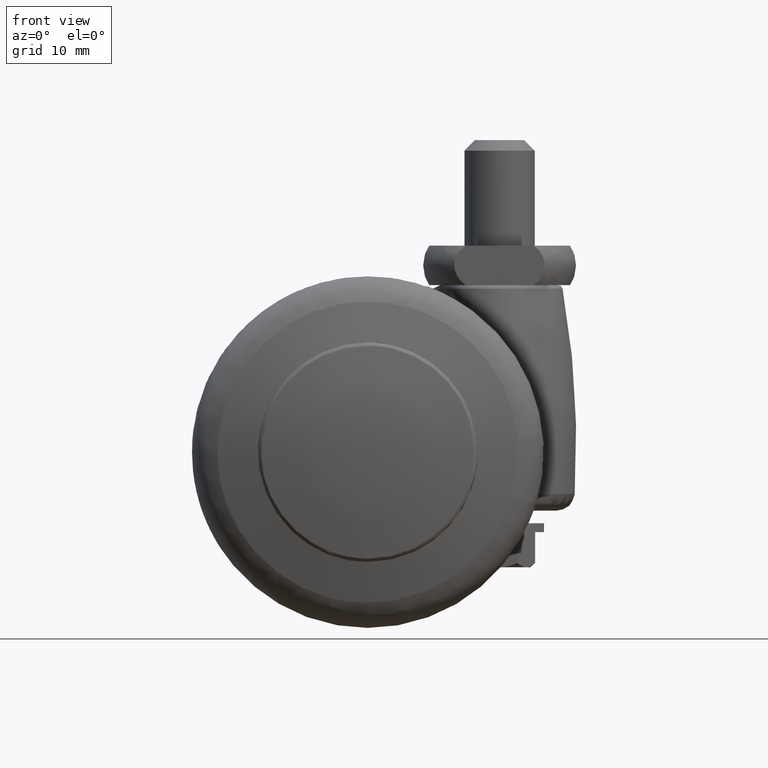
[diagram: clean part render]
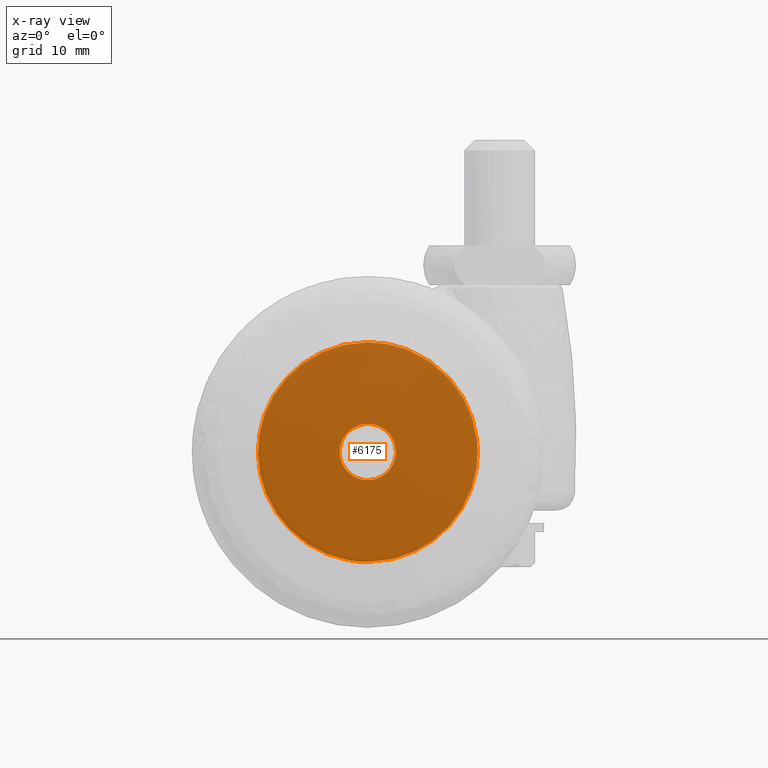
[diagram: x-ray — body ghosted, one internal face saturated and labeled with its STEP entity id]
A machine part, front view, then the same camera in x-ray: the body is ghosted and one INTERNAL B-rep face — a face not visible from any outside direction — is saturated and labeled: STEP entity #6175.
In plain terms, the highlighted face is a freeform B-spline surface patch.
Its self-contained STEP definition (entity closure, byte-faithful):
#3977=CARTESIAN_POINT('',(-3.175460595861829,18.0,-0.397235715630929));
#3978=VERTEX_POINT('',#3977);
#3979=CARTESIAN_POINT('',(0.0,18.0,-3.200210338344024));
#3980=VERTEX_POINT('',#3979);
#3981=CARTESIAN_POINT('',(-3.175460595861828,18.000000000000004,-0.397235715630929));
#3982=CARTESIAN_POINT('',(-2.824821185668508,18.000000000000007,-3.200210338344024));
#3983=CARTESIAN_POINT('',(0.0,18.0,-3.200210338344024));
#3991=(BOUNDED_CURVE()B_SPLINE_CURVE(2,(#3981,#3982,#3983),.UNSPECIFIED.,.F.,.U.)B_SPLINE_CURVE_WITH_KNOTS((3,3),(0.771473928981012,1.0),.UNSPECIFIED.)CURVE()GEOMETRIC_REPRESENTATION_ITEM()RATIONAL_B_SPLINE_CURVE((0.954005430254709,0.732265053905828,1.0))REPRESENTATION_ITEM(''));
#3992=EDGE_CURVE('',#3978,#3980,#3991,.T.);
#3994=CARTESIAN_POINT('',(3.200088484138911,18.0,0.027926749282832));
#3995=VERTEX_POINT('',#3994);
#3996=CARTESIAN_POINT('',(0.0,18.0,-3.200210338344024));
#3997=CARTESIAN_POINT('',(3.200210338344026,18.000000000000007,-3.200210338344024));
#3998=CARTESIAN_POINT('',(3.200210338344026,18.0,1.673897E-015));
#3999=CARTESIAN_POINT('',(3.200210338344026,17.999999999999996,0.013963640569249));
#4000=CARTESIAN_POINT('',(3.200088484138910,18.000000000000004,0.027926749282832));
#4008=(BOUNDED_CURVE()B_SPLINE_CURVE(2,(#3996,#3997,#3998,#3999,#4000),.UNSPECIFIED.,.F.,.U.)B_SPLINE_CURVE_WITH_KNOTS((3,2,3),(0.0,0.250000000000000,0.251539894352932),.UNSPECIFIED.)CURVE()GEOMETRIC_REPRESENTATION_ITEM()RATIONAL_B_SPLINE_CURVE((1.0,0.707106781186548,1.0,0.998195901545348,0.996414028058876))REPRESENTATION_ITEM(''));
#4009=EDGE_CURVE('',#3980,#3995,#4008,.T.);
#4080=CARTESIAN_POINT('',(0.0,18.0,3.200210338344027));
#4081=VERTEX_POINT('',#4080);
#4082=CARTESIAN_POINT('',(0.0,18.0,3.200210338344027));
#4083=CARTESIAN_POINT('',(-3.200210338344026,18.000000000000007,3.200210338344028));
#4084=CARTESIAN_POINT('',(-3.200210338344026,18.0,1.673897E-015));
#4085=CARTESIAN_POINT('',(-3.200210338344026,17.999999999999993,-0.199388873320670));
#4086=CARTESIAN_POINT('',(-3.175460595861829,18.000000000000004,-0.397235715630929));
#4094=(BOUNDED_CURVE()B_SPLINE_CURVE(2,(#4082,#4083,#4084,#4085,#4086),.UNSPECIFIED.,.F.,.U.)B_SPLINE_CURVE_WITH_KNOTS((3,2,3),(0.500000000000000,0.750000000000000,0.771473928981012),.UNSPECIFIED.)CURVE()GEOMETRIC_REPRESENTATION_ITEM()RATIONAL_B_SPLINE_CURVE((1.0,0.707106781186548,1.0,0.974841727280720,0.954005430254709))REPRESENTATION_ITEM(''));
#4095=EDGE_CURVE('',#4081,#3978,#4094,.T.);
#4129=CARTESIAN_POINT('',(3.200088484138910,18.0,0.027926749282832));
#4130=CARTESIAN_POINT('',(3.172404384339173,18.000000000000004,3.200210338344029));
#4131=CARTESIAN_POINT('',(0.0,18.0,3.200210338344027));
#4139=(BOUNDED_CURVE()B_SPLINE_CURVE(2,(#4129,#4130,#4131),.UNSPECIFIED.,.F.,.U.)B_SPLINE_CURVE_WITH_KNOTS((3,3),(0.251539894352932,0.500000000000000),.UNSPECIFIED.)CURVE()GEOMETRIC_REPRESENTATION_ITEM()RATIONAL_B_SPLINE_CURVE((0.996414028058876,0.708910879641199,1.0))REPRESENTATION_ITEM(''));
#4140=EDGE_CURVE('',#3995,#4081,#4139,.T.);
#4252=CARTESIAN_POINT('',(12.419649540628070,18.0,1.415028369975612));
#4253=VERTEX_POINT('',#4252);
#4259=CARTESIAN_POINT('',(0.0,18.0,-12.500000000000000));
#4260=VERTEX_POINT('',#4259);
#4261=CARTESIAN_POINT('',(0.0,18.0,-12.500000000000000));
#4262=CARTESIAN_POINT('',(12.499999999999998,18.000000000000007,-12.499999999999998));
#4263=CARTESIAN_POINT('',(12.500000000000000,18.0,1.673897E-015));
#4264=CARTESIAN_POINT('',(12.500000000000002,18.0,0.709795480705359));
#4265=CARTESIAN_POINT('',(12.419649540628068,18.0,1.415028369975612));
#4273=(BOUNDED_CURVE()B_SPLINE_CURVE(2,(#4261,#4262,#4263,#4264,#4265),.UNSPECIFIED.,.F.,.U.)B_SPLINE_CURVE_WITH_KNOTS((3,2,3),(0.0,0.250000000000000,0.269614699328043),.UNSPECIFIED.)CURVE()GEOMETRIC_REPRESENTATION_ITEM()RATIONAL_B_SPLINE_CURVE((1.0,0.707106781186547,1.0,0.977019950311006,0.957645874743556))REPRESENTATION_ITEM(''));
#4274=EDGE_CURVE('',#4260,#4253,#4273,.T.);
#4276=CARTESIAN_POINT('',(0.0,18.0,12.500000000000000));
#4277=VERTEX_POINT('',#4276);
#4278=CARTESIAN_POINT('',(0.0,18.0,12.500000000000000));
#4279=CARTESIAN_POINT('',(-12.499999999999998,18.000000000000007,12.500000000000004));
#4280=CARTESIAN_POINT('',(-12.500000000000000,18.0,1.673897E-015));
#4281=CARTESIAN_POINT('',(-12.499999999999998,18.000000000000007,-12.499999999999998));
#4282=CARTESIAN_POINT('',(0.0,18.0,-12.500000000000000));
#4290=(BOUNDED_CURVE()B_SPLINE_CURVE(2,(#4278,#4279,#4280,#4281,#4282),.UNSPECIFIED.,.F.,.U.)B_SPLINE_CURVE_WITH_KNOTS((3,2,3),(0.500000000000000,0.750000000000000,1.0),.UNSPECIFIED.)CURVE()GEOMETRIC_REPRESENTATION_ITEM()RATIONAL_B_SPLINE_CURVE((1.0,0.707106781186547,1.0,0.707106781186547,1.0))REPRESENTATION_ITEM(''));
#4291=EDGE_CURVE('',#4277,#4260,#4290,.T.);
#4293=CARTESIAN_POINT('',(9.285141773255308,18.0,8.368759899205386));
#4294=VERTEX_POINT('',#4293);
#4295=CARTESIAN_POINT('',(9.285141773255308,18.000000000000004,8.368759899205386));
#4296=CARTESIAN_POINT('',(5.561627654267610,17.999999999999996,12.500000000000004));
#4297=CARTESIAN_POINT('',(0.0,18.0,12.500000000000000));
#4305=(BOUNDED_CURVE()B_SPLINE_CURVE(2,(#4295,#4296,#4297),.UNSPECIFIED.,.F.,.U.)B_SPLINE_CURVE_WITH_KNOTS((3,3),(0.367172929644185,0.500000000000000),.UNSPECIFIED.)CURVE()GEOMETRIC_REPRESENTATION_ITEM()RATIONAL_B_SPLINE_CURVE((0.854127583430231,0.844383407271697,1.0))REPRESENTATION_ITEM(''));
#4306=EDGE_CURVE('',#4294,#4277,#4305,.T.);
#4348=CARTESIAN_POINT('',(12.419649540628070,18.000000000000004,1.415028369975612));
#4349=CARTESIAN_POINT('',(11.966305979354603,17.999999999999996,5.394007358703815));
#4350=CARTESIAN_POINT('',(9.285141773255308,18.000000000000004,8.368759899205386));
#4358=(BOUNDED_CURVE()B_SPLINE_CURVE(2,(#4348,#4349,#4350),.UNSPECIFIED.,.F.,.U.)B_SPLINE_CURVE_WITH_KNOTS((3,3),(0.269614699328043,0.367172929644185),.UNSPECIFIED.)CURVE()GEOMETRIC_REPRESENTATION_ITEM()RATIONAL_B_SPLINE_CURVE((0.957645874743556,0.861284442189283,0.854127583430231))REPRESENTATION_ITEM(''));
#4359=EDGE_CURVE('',#4253,#4294,#4358,.T.);
#6158=CARTESIAN_POINT('',(-13.748749504957329,18.0,-13.748749951545150));
#6159=CARTESIAN_POINT('',(-13.748749504957329,18.0,13.748750622097409));
#6160=CARTESIAN_POINT('',(13.748741234812870,18.0,-13.748749951545150));
#6161=CARTESIAN_POINT('',(13.748741234812870,18.0,13.748750622097409));
#6162=B_SPLINE_SURFACE_WITH_KNOTS('',1,1,((#6158,#6160),(#6159,#6161)),.UNSPECIFIED.,.F.,.F.,.U.,(2,2),(2,2),(0.0,27.497500573642551),(0.0,27.497490739770200),.UNSPECIFIED.);
#6163=ORIENTED_EDGE('',*,*,#4274,.T.);
#6164=ORIENTED_EDGE('',*,*,#4359,.T.);
#6165=ORIENTED_EDGE('',*,*,#4306,.T.);
#6166=ORIENTED_EDGE('',*,*,#4291,.T.);
#6167=EDGE_LOOP('',(#6163,#6164,#6165,#6166));
#6168=FACE_OUTER_BOUND('',#6167,.T.);
#6169=ORIENTED_EDGE('',*,*,#4009,.F.);
#6170=ORIENTED_EDGE('',*,*,#3992,.F.);
#6171=ORIENTED_EDGE('',*,*,#4095,.F.);
#6172=ORIENTED_EDGE('',*,*,#4140,.F.);
#6173=EDGE_LOOP('',(#6169,#6170,#6171,#6172));
#6174=FACE_BOUND('',#6173,.T.);
#6175=ADVANCED_FACE('',(#6168,#6174),#6162,.F.);